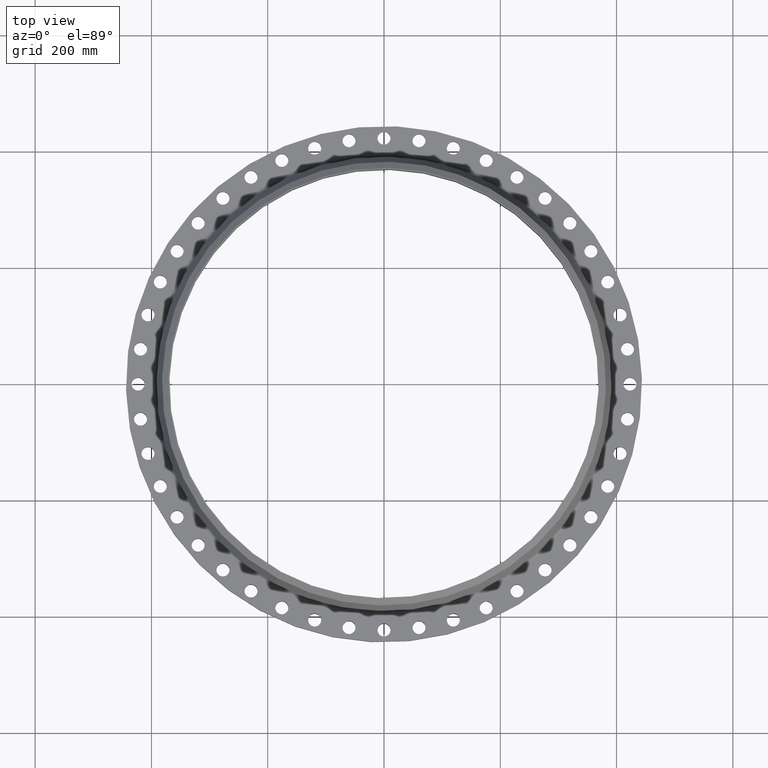
[diagram: clean part render]
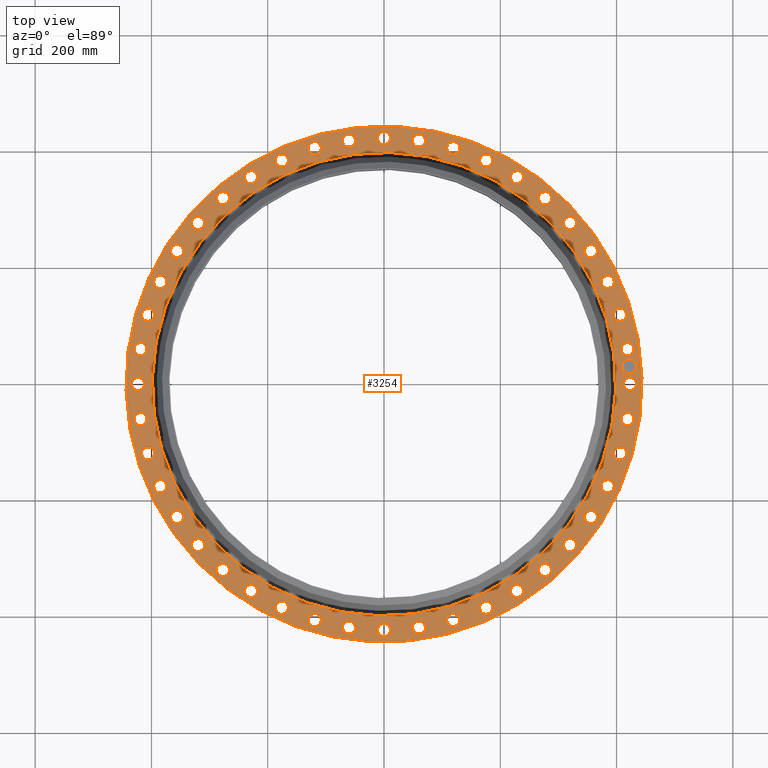
[diagram: same view with one face highlighted and labeled with its STEP entity id]
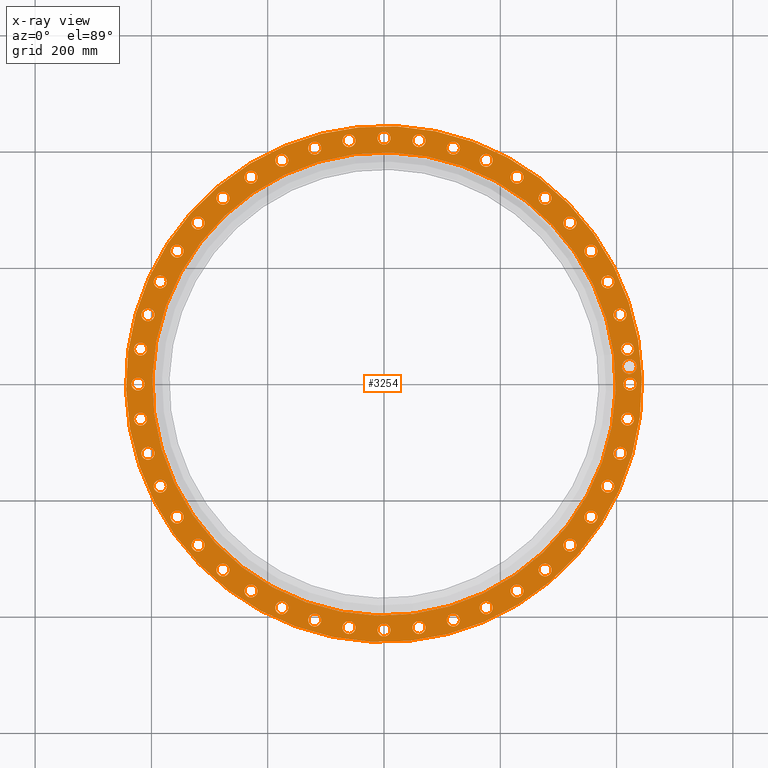
[diagram: x-ray of the same camera — body ghosted, the highlighted face saturated]
A machine part, top view. The second image highlights one B-rep face of the part: STEP entity #3254.
The next image is the same camera in x-ray: the body ghosted, the highlighted face saturated — about 0% of this face is hidden behind the body in this view.
In plain terms, the highlighted planar face has unit normal (0, 0, -1).
Its self-contained STEP definition (entity closure, byte-faithful):
#65=AXIS2_PLACEMENT_3D('Circle Axis2P3D',#63,#64,$) ;
#82=AXIS2_PLACEMENT_3D('Circle Axis2P3D',#80,#81,$) ;
#115=AXIS2_PLACEMENT_3D('Circle Axis2P3D',#113,#114,$) ;
#139=AXIS2_PLACEMENT_3D('Circle Axis2P3D',#137,#138,$) ;
#156=AXIS2_PLACEMENT_3D('Circle Axis2P3D',#154,#155,$) ;
#191=AXIS2_PLACEMENT_3D('Circle Axis2P3D',#189,#190,$) ;
#1219=AXIS2_PLACEMENT_3D('Circle Axis2P3D',#1217,#1218,$) ;
#1231=AXIS2_PLACEMENT_3D('Circle Axis2P3D',#1229,#1230,$) ;
#1262=AXIS2_PLACEMENT_3D('Circle Axis2P3D',#1260,#1261,$) ;
#1274=AXIS2_PLACEMENT_3D('Circle Axis2P3D',#1272,#1273,$) ;
#1305=AXIS2_PLACEMENT_3D('Circle Axis2P3D',#1303,#1304,$) ;
#1317=AXIS2_PLACEMENT_3D('Circle Axis2P3D',#1315,#1316,$) ;
#1348=AXIS2_PLACEMENT_3D('Circle Axis2P3D',#1346,#1347,$) ;
#1360=AXIS2_PLACEMENT_3D('Circle Axis2P3D',#1358,#1359,$) ;
#1391=AXIS2_PLACEMENT_3D('Circle Axis2P3D',#1389,#1390,$) ;
#1403=AXIS2_PLACEMENT_3D('Circle Axis2P3D',#1401,#1402,$) ;
#1434=AXIS2_PLACEMENT_3D('Circle Axis2P3D',#1432,#1433,$) ;
#1446=AXIS2_PLACEMENT_3D('Circle Axis2P3D',#1444,#1445,$) ;
#1477=AXIS2_PLACEMENT_3D('Circle Axis2P3D',#1475,#1476,$) ;
#1489=AXIS2_PLACEMENT_3D('Circle Axis2P3D',#1487,#1488,$) ;
#1520=AXIS2_PLACEMENT_3D('Circle Axis2P3D',#1518,#1519,$) ;
#1532=AXIS2_PLACEMENT_3D('Circle Axis2P3D',#1530,#1531,$) ;
#1563=AXIS2_PLACEMENT_3D('Circle Axis2P3D',#1561,#1562,$) ;
#1575=AXIS2_PLACEMENT_3D('Circle Axis2P3D',#1573,#1574,$) ;
#1606=AXIS2_PLACEMENT_3D('Circle Axis2P3D',#1604,#1605,$) ;
#1618=AXIS2_PLACEMENT_3D('Circle Axis2P3D',#1616,#1617,$) ;
#1649=AXIS2_PLACEMENT_3D('Circle Axis2P3D',#1647,#1648,$) ;
#1661=AXIS2_PLACEMENT_3D('Circle Axis2P3D',#1659,#1660,$) ;
#1692=AXIS2_PLACEMENT_3D('Circle Axis2P3D',#1690,#1691,$) ;
#1704=AXIS2_PLACEMENT_3D('Circle Axis2P3D',#1702,#1703,$) ;
#1735=AXIS2_PLACEMENT_3D('Circle Axis2P3D',#1733,#1734,$) ;
#1747=AXIS2_PLACEMENT_3D('Circle Axis2P3D',#1745,#1746,$) ;
#1778=AXIS2_PLACEMENT_3D('Circle Axis2P3D',#1776,#1777,$) ;
#1790=AXIS2_PLACEMENT_3D('Circle Axis2P3D',#1788,#1789,$) ;
#1821=AXIS2_PLACEMENT_3D('Circle Axis2P3D',#1819,#1820,$) ;
#1833=AXIS2_PLACEMENT_3D('Circle Axis2P3D',#1831,#1832,$) ;
#1864=AXIS2_PLACEMENT_3D('Circle Axis2P3D',#1862,#1863,$) ;
#1876=AXIS2_PLACEMENT_3D('Circle Axis2P3D',#1874,#1875,$) ;
#1907=AXIS2_PLACEMENT_3D('Circle Axis2P3D',#1905,#1906,$) ;
#1919=AXIS2_PLACEMENT_3D('Circle Axis2P3D',#1917,#1918,$) ;
#1950=AXIS2_PLACEMENT_3D('Circle Axis2P3D',#1948,#1949,$) ;
#1962=AXIS2_PLACEMENT_3D('Circle Axis2P3D',#1960,#1961,$) ;
#1993=AXIS2_PLACEMENT_3D('Circle Axis2P3D',#1991,#1992,$) ;
#2005=AXIS2_PLACEMENT_3D('Circle Axis2P3D',#2003,#2004,$) ;
#2036=AXIS2_PLACEMENT_3D('Circle Axis2P3D',#2034,#2035,$) ;
#2048=AXIS2_PLACEMENT_3D('Circle Axis2P3D',#2046,#2047,$) ;
#2079=AXIS2_PLACEMENT_3D('Circle Axis2P3D',#2077,#2078,$) ;
#2091=AXIS2_PLACEMENT_3D('Circle Axis2P3D',#2089,#2090,$) ;
#2122=AXIS2_PLACEMENT_3D('Circle Axis2P3D',#2120,#2121,$) ;
#2134=AXIS2_PLACEMENT_3D('Circle Axis2P3D',#2132,#2133,$) ;
#2165=AXIS2_PLACEMENT_3D('Circle Axis2P3D',#2163,#2164,$) ;
#2177=AXIS2_PLACEMENT_3D('Circle Axis2P3D',#2175,#2176,$) ;
#2208=AXIS2_PLACEMENT_3D('Circle Axis2P3D',#2206,#2207,$) ;
#2220=AXIS2_PLACEMENT_3D('Circle Axis2P3D',#2218,#2219,$) ;
#2251=AXIS2_PLACEMENT_3D('Circle Axis2P3D',#2249,#2250,$) ;
#2263=AXIS2_PLACEMENT_3D('Circle Axis2P3D',#2261,#2262,$) ;
#2294=AXIS2_PLACEMENT_3D('Circle Axis2P3D',#2292,#2293,$) ;
#2306=AXIS2_PLACEMENT_3D('Circle Axis2P3D',#2304,#2305,$) ;
#2337=AXIS2_PLACEMENT_3D('Circle Axis2P3D',#2335,#2336,$) ;
#2349=AXIS2_PLACEMENT_3D('Circle Axis2P3D',#2347,#2348,$) ;
#2380=AXIS2_PLACEMENT_3D('Circle Axis2P3D',#2378,#2379,$) ;
#2392=AXIS2_PLACEMENT_3D('Circle Axis2P3D',#2390,#2391,$) ;
#2423=AXIS2_PLACEMENT_3D('Circle Axis2P3D',#2421,#2422,$) ;
#2435=AXIS2_PLACEMENT_3D('Circle Axis2P3D',#2433,#2434,$) ;
#2466=AXIS2_PLACEMENT_3D('Circle Axis2P3D',#2464,#2465,$) ;
#2478=AXIS2_PLACEMENT_3D('Circle Axis2P3D',#2476,#2477,$) ;
#2509=AXIS2_PLACEMENT_3D('Circle Axis2P3D',#2507,#2508,$) ;
#2521=AXIS2_PLACEMENT_3D('Circle Axis2P3D',#2519,#2520,$) ;
#2552=AXIS2_PLACEMENT_3D('Circle Axis2P3D',#2550,#2551,$) ;
#2564=AXIS2_PLACEMENT_3D('Circle Axis2P3D',#2562,#2563,$) ;
#2595=AXIS2_PLACEMENT_3D('Circle Axis2P3D',#2593,#2594,$) ;
#2607=AXIS2_PLACEMENT_3D('Circle Axis2P3D',#2605,#2606,$) ;
#2638=AXIS2_PLACEMENT_3D('Circle Axis2P3D',#2636,#2637,$) ;
#2650=AXIS2_PLACEMENT_3D('Circle Axis2P3D',#2648,#2649,$) ;
#2681=AXIS2_PLACEMENT_3D('Circle Axis2P3D',#2679,#2680,$) ;
#2693=AXIS2_PLACEMENT_3D('Circle Axis2P3D',#2691,#2692,$) ;
#2724=AXIS2_PLACEMENT_3D('Circle Axis2P3D',#2722,#2723,$) ;
#2736=AXIS2_PLACEMENT_3D('Circle Axis2P3D',#2734,#2735,$) ;
#2767=AXIS2_PLACEMENT_3D('Circle Axis2P3D',#2765,#2766,$) ;
#2779=AXIS2_PLACEMENT_3D('Circle Axis2P3D',#2777,#2778,$) ;
#2810=AXIS2_PLACEMENT_3D('Circle Axis2P3D',#2808,#2809,$) ;
#2822=AXIS2_PLACEMENT_3D('Circle Axis2P3D',#2820,#2821,$) ;
#2853=AXIS2_PLACEMENT_3D('Circle Axis2P3D',#2851,#2852,$) ;
#2865=AXIS2_PLACEMENT_3D('Circle Axis2P3D',#2863,#2864,$) ;
#2896=AXIS2_PLACEMENT_3D('Circle Axis2P3D',#2894,#2895,$) ;
#2908=AXIS2_PLACEMENT_3D('Circle Axis2P3D',#2906,#2907,$) ;
#2939=AXIS2_PLACEMENT_3D('Circle Axis2P3D',#2937,#2938,$) ;
#2951=AXIS2_PLACEMENT_3D('Circle Axis2P3D',#2949,#2950,$) ;
#2982=AXIS2_PLACEMENT_3D('Circle Axis2P3D',#2980,#2981,$) ;
#2994=AXIS2_PLACEMENT_3D('Circle Axis2P3D',#2992,#2993,$) ;
#3025=AXIS2_PLACEMENT_3D('Circle Axis2P3D',#3023,#3024,$) ;
#3037=AXIS2_PLACEMENT_3D('Circle Axis2P3D',#3035,#3036,$) ;
#3050=AXIS2_PLACEMENT_3D('Plane Axis2P3D',#3047,#3048,#3049) ;
#3238=AXIS2_PLACEMENT_3D('Circle Axis2P3D',#3236,#3237,$) ;
#3247=AXIS2_PLACEMENT_3D('Circle Axis2P3D',#3245,#3246,$) ;
#46=CARTESIAN_POINT('Vertex',(16.2688636728,0.210947236987,1.69000000001)) ;
#60=CARTESIAN_POINT('Vertex',(17.0411363273,-0.210947236987,1.69000000001)) ;
#63=CARTESIAN_POINT('Axis2P3D Location',(16.6550000001,0.,1.69000000001)) ;
#80=CARTESIAN_POINT('Axis2P3D Location',(16.6550000001,0.,1.69000000001)) ;
#110=CARTESIAN_POINT('Vertex',(-8.37556415945,-15.3313673563,1.69000000001)) ;
#113=CARTESIAN_POINT('Axis2P3D Location',(0.,0.,1.69000000001)) ;
#117=CARTESIAN_POINT('Vertex',(8.37556415945,15.3313673563,1.69000000001)) ;
#137=CARTESIAN_POINT('Axis2P3D Location',(0.,0.,1.69000000001)) ;
#154=CARTESIAN_POINT('Axis2P3D Location',(0.,0.,1.69000000001)) ;
#158=CARTESIAN_POINT('Vertex',(7.52109158504,13.7672658003,1.69000000001)) ;
#160=CARTESIAN_POINT('Vertex',(-7.52109158504,-13.7672658003,1.69000000001)) ;
#189=CARTESIAN_POINT('Axis2P3D Location',(0.,0.,1.69000000001)) ;
#1207=CARTESIAN_POINT('Vertex',(-16.1332910203,2.10650060421,1.69000000001)) ;
#1214=CARTESIAN_POINT('Vertex',(-16.8376612089,2.63400665869,1.69000000001)) ;
#1217=CARTESIAN_POINT('Axis2P3D Location',(-16.4854761146,2.37025363145,1.69000000001)) ;
#1229=CARTESIAN_POINT('Axis2P3D Location',(-16.4854761146,2.37025363145,1.69000000001)) ;
#1250=CARTESIAN_POINT('Vertex',(15.6692910872,-4.38106616776,1.69000000001)) ;
#1257=CARTESIAN_POINT('Vertex',(16.291419864,-5.00344530067,1.69000000001)) ;
#1260=CARTESIAN_POINT('Axis2P3D Location',(15.9803554756,-4.69225573421,1.69000000001)) ;
#1272=CARTESIAN_POINT('Axis2P3D Location',(15.9803554756,-4.69225573421,1.69000000001)) ;
#1293=CARTESIAN_POINT('Vertex',(-15.6692910872,4.38106616776,1.69000000001)) ;
#1300=CARTESIAN_POINT('Vertex',(-16.291419864,5.00344530067,1.69000000001)) ;
#1303=CARTESIAN_POINT('Axis2P3D Location',(-15.9803554756,4.69225573421,1.69000000001)) ;
#1315=CARTESIAN_POINT('Axis2P3D Location',(-15.9803554756,4.69225573421,1.69000000001)) ;
#1336=CARTESIAN_POINT('Vertex',(14.8863095741,-6.56644585808,1.69000000001)) ;
#1343=CARTESIAN_POINT('Vertex',(15.4135321913,-7.27102822507,1.69000000001)) ;
#1346=CARTESIAN_POINT('Axis2P3D Location',(15.1499208827,-6.91873704157,1.69000000001)) ;
#1358=CARTESIAN_POINT('Axis2P3D Location',(15.1499208827,-6.91873704157,1.69000000001)) ;
#1379=CARTESIAN_POINT('Vertex',(-14.8863095741,6.56644585808,1.69000000001)) ;
#1386=CARTESIAN_POINT('Vertex',(-15.4135321913,7.27102822507,1.69000000001)) ;
#1389=CARTESIAN_POINT('Axis2P3D Location',(-15.1499208827,6.91873704157,1.69000000001)) ;
#1401=CARTESIAN_POINT('Axis2P3D Location',(-15.1499208827,6.91873704157,1.69000000001)) ;
#1422=CARTESIAN_POINT('Vertex',(13.8002857266,-8.6181516468,1.69000000001)) ;
#1429=CARTESIAN_POINT('Vertex',(14.2218694522,-9.39059398272,1.69000000001)) ;
#1432=CARTESIAN_POINT('Axis2P3D Location',(14.0110775894,-9.00437281476,1.69000000001)) ;
#1444=CARTESIAN_POINT('Axis2P3D Location',(14.0110775894,-9.00437281476,1.69000000001)) ;
#1465=CARTESIAN_POINT('Vertex',(-13.8002857266,8.6181516468,1.69000000001)) ;
#1472=CARTESIAN_POINT('Vertex',(-14.2218694522,9.39059398272,1.69000000001)) ;
#1475=CARTESIAN_POINT('Axis2P3D Location',(-14.0110775894,9.00437281476,1.69000000001)) ;
#1487=CARTESIAN_POINT('Axis2P3D Location',(-14.0110775894,9.00437281476,1.69000000001)) ;
#1508=CARTESIAN_POINT('Vertex',(12.4333278584,-10.4944167207,1.69000000001)) ;
#1515=CARTESIAN_POINT('Vertex',(12.7406904634,-11.3189943271,1.69000000001)) ;
#1518=CARTESIAN_POINT('Axis2P3D Location',(12.5870091609,-10.9067055239,1.69000000001)) ;
#1530=CARTESIAN_POINT('Axis2P3D Location',(12.5870091609,-10.9067055239,1.69000000001)) ;
#1551=CARTESIAN_POINT('Vertex',(-12.4333278584,10.4944167207,1.69000000001)) ;
#1558=CARTESIAN_POINT('Vertex',(-12.7406904634,11.3189943271,1.69000000001)) ;
#1561=CARTESIAN_POINT('Axis2P3D Location',(-12.5870091609,10.9067055239,1.69000000001)) ;
#1573=CARTESIAN_POINT('Axis2P3D Location',(-12.5870091609,10.9067055239,1.69000000001)) ;
#1594=CARTESIAN_POINT('Vertex',(10.8132632898,-12.1570457335,1.69000000001)) ;
#1601=CARTESIAN_POINT('Vertex',(11.000147758,-13.0169725883,1.69000000001)) ;
#1604=CARTESIAN_POINT('Axis2P3D Location',(10.9067055239,-12.5870091609,1.69000000001)) ;
#1616=CARTESIAN_POINT('Axis2P3D Location',(10.9067055239,-12.5870091609,1.69000000001)) ;
#1637=CARTESIAN_POINT('Vertex',(-10.8132632898,12.1570457335,1.69000000001)) ;
#1644=CARTESIAN_POINT('Vertex',(-11.000147758,13.0169725883,1.69000000001)) ;
#1647=CARTESIAN_POINT('Axis2P3D Location',(-10.9067055239,12.5870091609,1.69000000001)) ;
#1659=CARTESIAN_POINT('Axis2P3D Location',(-10.9067055239,12.5870091609,1.69000000001)) ;
#1680=CARTESIAN_POINT('Vertex',(8.97307186351,-13.5721923533,1.69000000001)) ;
#1687=CARTESIAN_POINT('Vertex',(9.03567376601,-14.4499628254,1.69000000001)) ;
#1690=CARTESIAN_POINT('Axis2P3D Location',(9.00437281476,-14.0110775894,1.69000000001)) ;
#1702=CARTESIAN_POINT('Axis2P3D Location',(9.00437281476,-14.0110775894,1.69000000001)) ;
#1723=CARTESIAN_POINT('Vertex',(-8.97307186351,13.5721923533,1.69000000001)) ;
#1730=CARTESIAN_POINT('Vertex',(-9.03567376601,14.4499628254,1.69000000001)) ;
#1733=CARTESIAN_POINT('Axis2P3D Location',(-9.00437281476,14.0110775894,1.69000000001)) ;
#1745=CARTESIAN_POINT('Axis2P3D Location',(-9.00437281476,14.0110775894,1.69000000001)) ;
#1766=CARTESIAN_POINT('Vertex',(6.95021457027,-14.7110482757,1.69000000001)) ;
#1773=CARTESIAN_POINT('Vertex',(6.88725951288,-15.5887934897,1.69000000001)) ;
#1776=CARTESIAN_POINT('Axis2P3D Location',(6.91873704157,-15.1499208827,1.69000000001)) ;
#1788=CARTESIAN_POINT('Axis2P3D Location',(6.91873704157,-15.1499208827,1.69000000001)) ;
#1809=CARTESIAN_POINT('Vertex',(-6.95021457027,14.7110482757,1.69000000001)) ;
#1816=CARTESIAN_POINT('Vertex',(-6.88725951288,15.5887934897,1.69000000001)) ;
#1819=CARTESIAN_POINT('Axis2P3D Location',(-6.91873704157,15.1499208827,1.69000000001)) ;
#1831=CARTESIAN_POINT('Axis2P3D Location',(-6.91873704157,15.1499208827,1.69000000001)) ;
#1852=CARTESIAN_POINT('Vertex',(4.78587095114,-15.5504296783,1.69000000001)) ;
#1859=CARTESIAN_POINT('Vertex',(4.59864051728,-16.4102812729,1.69000000001)) ;
#1862=CARTESIAN_POINT('Axis2P3D Location',(4.69225573421,-15.9803554756,1.69000000001)) ;
#1874=CARTESIAN_POINT('Axis2P3D Location',(4.69225573421,-15.9803554756,1.69000000001)) ;
#1895=CARTESIAN_POINT('Vertex',(-4.78587095114,15.5504296783,1.69000000001)) ;
#1902=CARTESIAN_POINT('Vertex',(-4.59864051728,16.4102812729,1.69000000001)) ;
#1905=CARTESIAN_POINT('Axis2P3D Location',(-4.69225573421,15.9803554756,1.69000000001)) ;
#1917=CARTESIAN_POINT('Axis2P3D Location',(-4.69225573421,15.9803554756,1.69000000001)) ;
#1938=CARTESIAN_POINT('Vertex',(2.52410080076,-16.0732491765,1.69000000001)) ;
#1945=CARTESIAN_POINT('Vertex',(2.21640646214,-16.8977030527,1.69000000001)) ;
#1948=CARTESIAN_POINT('Axis2P3D Location',(2.37025363145,-16.4854761146,1.69000000001)) ;
#1960=CARTESIAN_POINT('Axis2P3D Location',(2.37025363145,-16.4854761146,1.69000000001)) ;
#1981=CARTESIAN_POINT('Vertex',(-2.52410080076,16.0732491765,1.69000000001)) ;
#1988=CARTESIAN_POINT('Vertex',(-2.21640646214,16.8977030527,1.69000000001)) ;
#1991=CARTESIAN_POINT('Axis2P3D Location',(-2.37025363145,16.4854761146,1.69000000001)) ;
#2003=CARTESIAN_POINT('Axis2P3D Location',(-2.37025363145,16.4854761146,1.69000000001)) ;
#2024=CARTESIAN_POINT('Vertex',(0.210947236987,-16.2688636728,1.69000000001)) ;
#2031=CARTESIAN_POINT('Vertex',(-0.210947236987,-17.0411363273,1.69000000001)) ;
#2034=CARTESIAN_POINT('Axis2P3D Location',(-1.21810525442E-015,-16.6550000001,1.69000000001)) ;
#2046=CARTESIAN_POINT('Axis2P3D Location',(-1.21810525442E-015,-16.6550000001,1.69000000001)) ;
#2067=CARTESIAN_POINT('Vertex',(-0.210947236987,16.2688636728,1.69000000001)) ;
#2074=CARTESIAN_POINT('Vertex',(0.210947236987,17.0411363273,1.69000000001)) ;
#2077=CARTESIAN_POINT('Axis2P3D Location',(-8.21543989572E-016,16.6550000001,1.69000000001)) ;
#2089=CARTESIAN_POINT('Axis2P3D Location',(-8.21543989572E-016,16.6550000001,1.69000000001)) ;
#2110=CARTESIAN_POINT('Vertex',(-2.10650060421,-16.1332910203,1.69000000001)) ;
#2117=CARTESIAN_POINT('Vertex',(-2.63400665869,-16.8376612089,1.69000000001)) ;
#2120=CARTESIAN_POINT('Axis2P3D Location',(-2.37025363145,-16.4854761146,1.69000000001)) ;
#2132=CARTESIAN_POINT('Axis2P3D Location',(-2.37025363145,-16.4854761146,1.69000000001)) ;
#2153=CARTESIAN_POINT('Vertex',(2.10650060421,16.1332910203,1.69000000001)) ;
#2160=CARTESIAN_POINT('Vertex',(2.63400665869,16.8376612089,1.69000000001)) ;
#2163=CARTESIAN_POINT('Axis2P3D Location',(2.37025363145,16.4854761146,1.69000000001)) ;
#2175=CARTESIAN_POINT('Axis2P3D Location',(2.37025363145,16.4854761146,1.69000000001)) ;
#2196=CARTESIAN_POINT('Vertex',(-4.38106616776,-15.6692910872,1.69000000001)) ;
#2203=CARTESIAN_POINT('Vertex',(-5.00344530067,-16.291419864,1.69000000001)) ;
#2206=CARTESIAN_POINT('Axis2P3D Location',(-4.69225573421,-15.9803554756,1.69000000001)) ;
#2218=CARTESIAN_POINT('Axis2P3D Location',(-4.69225573421,-15.9803554756,1.69000000001)) ;
#2239=CARTESIAN_POINT('Vertex',(4.38106616776,15.6692910872,1.69000000001)) ;
#2246=CARTESIAN_POINT('Vertex',(5.00344530067,16.291419864,1.69000000001)) ;
#2249=CARTESIAN_POINT('Axis2P3D Location',(4.69225573421,15.9803554756,1.69000000001)) ;
#2261=CARTESIAN_POINT('Axis2P3D Location',(4.69225573421,15.9803554756,1.69000000001)) ;
#2282=CARTESIAN_POINT('Vertex',(-6.56644585808,-14.8863095741,1.69000000001)) ;
#2289=CARTESIAN_POINT('Vertex',(-7.27102822507,-15.4135321913,1.69000000001)) ;
#2292=CARTESIAN_POINT('Axis2P3D Location',(-6.91873704157,-15.1499208827,1.69000000001)) ;
#2304=CARTESIAN_POINT('Axis2P3D Location',(-6.91873704157,-15.1499208827,1.69000000001)) ;
#2325=CARTESIAN_POINT('Vertex',(6.56644585808,14.8863095741,1.69000000001)) ;
#2332=CARTESIAN_POINT('Vertex',(7.27102822507,15.4135321913,1.69000000001)) ;
#2335=CARTESIAN_POINT('Axis2P3D Location',(6.91873704157,15.1499208827,1.69000000001)) ;
#2347=CARTESIAN_POINT('Axis2P3D Location',(6.91873704157,15.1499208827,1.69000000001)) ;
#2368=CARTESIAN_POINT('Vertex',(-8.6181516468,-13.8002857266,1.69000000001)) ;
#2375=CARTESIAN_POINT('Vertex',(-9.39059398272,-14.2218694522,1.69000000001)) ;
#2378=CARTESIAN_POINT('Axis2P3D Location',(-9.00437281476,-14.0110775894,1.69000000001)) ;
#2390=CARTESIAN_POINT('Axis2P3D Location',(-9.00437281476,-14.0110775894,1.69000000001)) ;
#2411=CARTESIAN_POINT('Vertex',(8.6181516468,13.8002857266,1.69000000001)) ;
#2418=CARTESIAN_POINT('Vertex',(9.39059398272,14.2218694522,1.69000000001)) ;
#2421=CARTESIAN_POINT('Axis2P3D Location',(9.00437281476,14.0110775894,1.69000000001)) ;
#2433=CARTESIAN_POINT('Axis2P3D Location',(9.00437281476,14.0110775894,1.69000000001)) ;
#2454=CARTESIAN_POINT('Vertex',(-10.4944167207,-12.4333278584,1.69000000001)) ;
#2461=CARTESIAN_POINT('Vertex',(-11.3189943271,-12.7406904634,1.69000000001)) ;
#2464=CARTESIAN_POINT('Axis2P3D Location',(-10.9067055239,-12.5870091609,1.69000000001)) ;
#2476=CARTESIAN_POINT('Axis2P3D Location',(-10.9067055239,-12.5870091609,1.69000000001)) ;
#2497=CARTESIAN_POINT('Vertex',(10.4944167207,12.4333278584,1.69000000001)) ;
#2504=CARTESIAN_POINT('Vertex',(11.3189943271,12.7406904634,1.69000000001)) ;
#2507=CARTESIAN_POINT('Axis2P3D Location',(10.9067055239,12.5870091609,1.69000000001)) ;
#2519=CARTESIAN_POINT('Axis2P3D Location',(10.9067055239,12.5870091609,1.69000000001)) ;
#2540=CARTESIAN_POINT('Vertex',(-12.1570457335,-10.8132632898,1.69000000001)) ;
#2547=CARTESIAN_POINT('Vertex',(-13.0169725883,-11.000147758,1.69000000001)) ;
#2550=CARTESIAN_POINT('Axis2P3D Location',(-12.5870091609,-10.9067055239,1.69000000001)) ;
#2562=CARTESIAN_POINT('Axis2P3D Location',(-12.5870091609,-10.9067055239,1.69000000001)) ;
#2583=CARTESIAN_POINT('Vertex',(12.1570457335,10.8132632898,1.69000000001)) ;
#2590=CARTESIAN_POINT('Vertex',(13.0169725883,11.000147758,1.69000000001)) ;
#2593=CARTESIAN_POINT('Axis2P3D Location',(12.5870091609,10.9067055239,1.69000000001)) ;
#2605=CARTESIAN_POINT('Axis2P3D Location',(12.5870091609,10.9067055239,1.69000000001)) ;
#2626=CARTESIAN_POINT('Vertex',(-13.5721923533,-8.97307186351,1.69000000001)) ;
#2633=CARTESIAN_POINT('Vertex',(-14.4499628254,-9.03567376601,1.69000000001)) ;
#2636=CARTESIAN_POINT('Axis2P3D Location',(-14.0110775894,-9.00437281476,1.69000000001)) ;
#2648=CARTESIAN_POINT('Axis2P3D Location',(-14.0110775894,-9.00437281476,1.69000000001)) ;
#2669=CARTESIAN_POINT('Vertex',(13.5721923533,8.97307186351,1.69000000001)) ;
#2676=CARTESIAN_POINT('Vertex',(14.4499628254,9.03567376601,1.69000000001)) ;
#2679=CARTESIAN_POINT('Axis2P3D Location',(14.0110775894,9.00437281476,1.69000000001)) ;
#2691=CARTESIAN_POINT('Axis2P3D Location',(14.0110775894,9.00437281476,1.69000000001)) ;
#2712=CARTESIAN_POINT('Vertex',(-14.7110482757,-6.95021457027,1.69000000001)) ;
#2719=CARTESIAN_POINT('Vertex',(-15.5887934897,-6.88725951288,1.69000000001)) ;
#2722=CARTESIAN_POINT('Axis2P3D Location',(-15.1499208827,-6.91873704157,1.69000000001)) ;
#2734=CARTESIAN_POINT('Axis2P3D Location',(-15.1499208827,-6.91873704157,1.69000000001)) ;
#2755=CARTESIAN_POINT('Vertex',(14.7110482757,6.95021457027,1.69000000001)) ;
#2762=CARTESIAN_POINT('Vertex',(15.5887934897,6.88725951288,1.69000000001)) ;
#2765=CARTESIAN_POINT('Axis2P3D Location',(15.1499208827,6.91873704157,1.69000000001)) ;
#2777=CARTESIAN_POINT('Axis2P3D Location',(15.1499208827,6.91873704157,1.69000000001)) ;
#2798=CARTESIAN_POINT('Vertex',(-15.5504296783,-4.78587095114,1.69000000001)) ;
#2805=CARTESIAN_POINT('Vertex',(-16.4102812729,-4.59864051728,1.69000000001)) ;
#2808=CARTESIAN_POINT('Axis2P3D Location',(-15.9803554756,-4.69225573421,1.69000000001)) ;
#2820=CARTESIAN_POINT('Axis2P3D Location',(-15.9803554756,-4.69225573421,1.69000000001)) ;
#2841=CARTESIAN_POINT('Vertex',(15.5504296783,4.78587095114,1.69000000001)) ;
#2848=CARTESIAN_POINT('Vertex',(16.4102812729,4.59864051728,1.69000000001)) ;
#2851=CARTESIAN_POINT('Axis2P3D Location',(15.9803554756,4.69225573421,1.69000000001)) ;
#2863=CARTESIAN_POINT('Axis2P3D Location',(15.9803554756,4.69225573421,1.69000000001)) ;
#2884=CARTESIAN_POINT('Vertex',(-16.0732491765,-2.52410080076,1.69000000001)) ;
#2891=CARTESIAN_POINT('Vertex',(-16.8977030527,-2.21640646214,1.69000000001)) ;
#2894=CARTESIAN_POINT('Axis2P3D Location',(-16.4854761146,-2.37025363145,1.69000000001)) ;
#2906=CARTESIAN_POINT('Axis2P3D Location',(-16.4854761146,-2.37025363145,1.69000000001)) ;
#2927=CARTESIAN_POINT('Vertex',(16.0732491765,2.52410080076,1.69000000001)) ;
#2934=CARTESIAN_POINT('Vertex',(16.8977030527,2.21640646214,1.69000000001)) ;
#2937=CARTESIAN_POINT('Axis2P3D Location',(16.4854761146,2.37025363145,1.69000000001)) ;
#2949=CARTESIAN_POINT('Axis2P3D Location',(16.4854761146,2.37025363145,1.69000000001)) ;
#2970=CARTESIAN_POINT('Vertex',(-16.2688636728,-0.210947236987,1.69000000001)) ;
#2977=CARTESIAN_POINT('Vertex',(-17.0411363273,0.210947236987,1.69000000001)) ;
#2980=CARTESIAN_POINT('Axis2P3D Location',(-16.6550000001,-2.03964924399E-015,1.69000000001)) ;
#2992=CARTESIAN_POINT('Axis2P3D Location',(-16.6550000001,-2.03964924399E-015,1.69000000001)) ;
#3013=CARTESIAN_POINT('Vertex',(16.1332910203,-2.10650060421,1.69000000001)) ;
#3020=CARTESIAN_POINT('Vertex',(16.8376612089,-2.63400665869,1.69000000001)) ;
#3023=CARTESIAN_POINT('Axis2P3D Location',(16.4854761146,-2.37025363145,1.69000000001)) ;
#3035=CARTESIAN_POINT('Axis2P3D Location',(16.4854761146,-2.37025363145,1.69000000001)) ;
#3047=CARTESIAN_POINT('Axis2P3D Location',(0.,17.4700000001,1.69000000001)) ;
#3236=CARTESIAN_POINT('Axis2P3D Location',(16.6125649689,1.18815409619,1.69000000001)) ;
#3240=CARTESIAN_POINT('Vertex',(16.5768954591,1.68687901041,1.69000000001)) ;
#3242=CARTESIAN_POINT('Vertex',(16.6482344787,0.689429181964,1.69000000001)) ;
#3245=CARTESIAN_POINT('Axis2P3D Location',(16.6125649689,1.18815409619,1.69000000001)) ;
#64=DIRECTION('Axis2P3D Direction',(0.,-0.,-0.0393700787402)) ;
#81=DIRECTION('Axis2P3D Direction',(0.,-0.,-0.0393700787402)) ;
#114=DIRECTION('Axis2P3D Direction',(0.,0.,-0.0393700787402)) ;
#138=DIRECTION('Axis2P3D Direction',(0.,0.,-0.0393700787402)) ;
#155=DIRECTION('Axis2P3D Direction',(0.,0.,-0.0393700787402)) ;
#190=DIRECTION('Axis2P3D Direction',(0.,0.,-0.0393700787402)) ;
#1218=DIRECTION('Axis2P3D Direction',(0.,0.,-0.0393700787402)) ;
#1230=DIRECTION('Axis2P3D Direction',(0.,0.,-0.0393700787402)) ;
#1261=DIRECTION('Axis2P3D Direction',(0.,-0.,-0.0393700787402)) ;
#1273=DIRECTION('Axis2P3D Direction',(0.,-0.,-0.0393700787402)) ;
#1304=DIRECTION('Axis2P3D Direction',(0.,0.,-0.0393700787402)) ;
#1316=DIRECTION('Axis2P3D Direction',(0.,0.,-0.0393700787402)) ;
#1347=DIRECTION('Axis2P3D Direction',(0.,-0.,-0.0393700787402)) ;
#1359=DIRECTION('Axis2P3D Direction',(0.,-0.,-0.0393700787402)) ;
#1390=DIRECTION('Axis2P3D Direction',(0.,0.,-0.0393700787402)) ;
#1402=DIRECTION('Axis2P3D Direction',(0.,0.,-0.0393700787402)) ;
#1433=DIRECTION('Axis2P3D Direction',(0.,-0.,-0.0393700787402)) ;
#1445=DIRECTION('Axis2P3D Direction',(0.,-0.,-0.0393700787402)) ;
#1476=DIRECTION('Axis2P3D Direction',(0.,0.,-0.0393700787402)) ;
#1488=DIRECTION('Axis2P3D Direction',(0.,0.,-0.0393700787402)) ;
#1519=DIRECTION('Axis2P3D Direction',(0.,-0.,-0.0393700787402)) ;
#1531=DIRECTION('Axis2P3D Direction',(0.,-0.,-0.0393700787402)) ;
#1562=DIRECTION('Axis2P3D Direction',(0.,0.,-0.0393700787402)) ;
#1574=DIRECTION('Axis2P3D Direction',(0.,0.,-0.0393700787402)) ;
#1605=DIRECTION('Axis2P3D Direction',(0.,-0.,-0.0393700787402)) ;
#1617=DIRECTION('Axis2P3D Direction',(0.,-0.,-0.0393700787402)) ;
#1648=DIRECTION('Axis2P3D Direction',(0.,0.,-0.0393700787402)) ;
#1660=DIRECTION('Axis2P3D Direction',(0.,0.,-0.0393700787402)) ;
#1691=DIRECTION('Axis2P3D Direction',(0.,-0.,-0.0393700787402)) ;
#1703=DIRECTION('Axis2P3D Direction',(0.,-0.,-0.0393700787402)) ;
#1734=DIRECTION('Axis2P3D Direction',(0.,0.,-0.0393700787402)) ;
#1746=DIRECTION('Axis2P3D Direction',(0.,0.,-0.0393700787402)) ;
#1777=DIRECTION('Axis2P3D Direction',(0.,-0.,-0.0393700787402)) ;
#1789=DIRECTION('Axis2P3D Direction',(0.,-0.,-0.0393700787402)) ;
#1820=DIRECTION('Axis2P3D Direction',(0.,0.,-0.0393700787402)) ;
#1832=DIRECTION('Axis2P3D Direction',(0.,0.,-0.0393700787402)) ;
#1863=DIRECTION('Axis2P3D Direction',(0.,-0.,-0.0393700787402)) ;
#1875=DIRECTION('Axis2P3D Direction',(0.,-0.,-0.0393700787402)) ;
#1906=DIRECTION('Axis2P3D Direction',(0.,0.,-0.0393700787402)) ;
#1918=DIRECTION('Axis2P3D Direction',(0.,0.,-0.0393700787402)) ;
#1949=DIRECTION('Axis2P3D Direction',(0.,-0.,-0.0393700787402)) ;
#1961=DIRECTION('Axis2P3D Direction',(0.,-0.,-0.0393700787402)) ;
#1992=DIRECTION('Axis2P3D Direction',(0.,0.,-0.0393700787402)) ;
#2004=DIRECTION('Axis2P3D Direction',(0.,0.,-0.0393700787402)) ;
#2035=DIRECTION('Axis2P3D Direction',(0.,-0.,-0.0393700787402)) ;
#2047=DIRECTION('Axis2P3D Direction',(0.,-0.,-0.0393700787402)) ;
#2078=DIRECTION('Axis2P3D Direction',(0.,0.,-0.0393700787402)) ;
#2090=DIRECTION('Axis2P3D Direction',(0.,0.,-0.0393700787402)) ;
#2121=DIRECTION('Axis2P3D Direction',(-0.,0.,-0.0393700787402)) ;
#2133=DIRECTION('Axis2P3D Direction',(-0.,0.,-0.0393700787402)) ;
#2164=DIRECTION('Axis2P3D Direction',(0.,0.,-0.0393700787402)) ;
#2176=DIRECTION('Axis2P3D Direction',(0.,0.,-0.0393700787402)) ;
#2207=DIRECTION('Axis2P3D Direction',(-0.,0.,-0.0393700787402)) ;
#2219=DIRECTION('Axis2P3D Direction',(-0.,0.,-0.0393700787402)) ;
#2250=DIRECTION('Axis2P3D Direction',(0.,0.,-0.0393700787402)) ;
#2262=DIRECTION('Axis2P3D Direction',(0.,0.,-0.0393700787402)) ;
#2293=DIRECTION('Axis2P3D Direction',(-0.,0.,-0.0393700787402)) ;
#2305=DIRECTION('Axis2P3D Direction',(-0.,0.,-0.0393700787402)) ;
#2336=DIRECTION('Axis2P3D Direction',(0.,0.,-0.0393700787402)) ;
#2348=DIRECTION('Axis2P3D Direction',(0.,0.,-0.0393700787402)) ;
#2379=DIRECTION('Axis2P3D Direction',(-0.,0.,-0.0393700787402)) ;
#2391=DIRECTION('Axis2P3D Direction',(-0.,0.,-0.0393700787402)) ;
#2422=DIRECTION('Axis2P3D Direction',(0.,0.,-0.0393700787402)) ;
#2434=DIRECTION('Axis2P3D Direction',(0.,0.,-0.0393700787402)) ;
#2465=DIRECTION('Axis2P3D Direction',(-0.,0.,-0.0393700787402)) ;
#2477=DIRECTION('Axis2P3D Direction',(-0.,0.,-0.0393700787402)) ;
#2508=DIRECTION('Axis2P3D Direction',(0.,0.,-0.0393700787402)) ;
#2520=DIRECTION('Axis2P3D Direction',(0.,0.,-0.0393700787402)) ;
#2551=DIRECTION('Axis2P3D Direction',(-0.,0.,-0.0393700787402)) ;
#2563=DIRECTION('Axis2P3D Direction',(-0.,0.,-0.0393700787402)) ;
#2594=DIRECTION('Axis2P3D Direction',(0.,0.,-0.0393700787402)) ;
#2606=DIRECTION('Axis2P3D Direction',(0.,0.,-0.0393700787402)) ;
#2637=DIRECTION('Axis2P3D Direction',(-0.,0.,-0.0393700787402)) ;
#2649=DIRECTION('Axis2P3D Direction',(-0.,0.,-0.0393700787402)) ;
#2680=DIRECTION('Axis2P3D Direction',(0.,0.,-0.0393700787402)) ;
#2692=DIRECTION('Axis2P3D Direction',(0.,0.,-0.0393700787402)) ;
#2723=DIRECTION('Axis2P3D Direction',(-0.,0.,-0.0393700787402)) ;
#2735=DIRECTION('Axis2P3D Direction',(-0.,0.,-0.0393700787402)) ;
#2766=DIRECTION('Axis2P3D Direction',(0.,0.,-0.0393700787402)) ;
#2778=DIRECTION('Axis2P3D Direction',(0.,0.,-0.0393700787402)) ;
#2809=DIRECTION('Axis2P3D Direction',(-0.,0.,-0.0393700787402)) ;
#2821=DIRECTION('Axis2P3D Direction',(-0.,0.,-0.0393700787402)) ;
#2852=DIRECTION('Axis2P3D Direction',(0.,0.,-0.0393700787402)) ;
#2864=DIRECTION('Axis2P3D Direction',(0.,0.,-0.0393700787402)) ;
#2895=DIRECTION('Axis2P3D Direction',(-0.,0.,-0.0393700787402)) ;
#2907=DIRECTION('Axis2P3D Direction',(-0.,0.,-0.0393700787402)) ;
#2938=DIRECTION('Axis2P3D Direction',(0.,0.,-0.0393700787402)) ;
#2950=DIRECTION('Axis2P3D Direction',(0.,0.,-0.0393700787402)) ;
#2981=DIRECTION('Axis2P3D Direction',(-0.,0.,-0.0393700787402)) ;
#2993=DIRECTION('Axis2P3D Direction',(-0.,0.,-0.0393700787402)) ;
#3024=DIRECTION('Axis2P3D Direction',(0.,-0.,-0.0393700787402)) ;
#3036=DIRECTION('Axis2P3D Direction',(0.,-0.,-0.0393700787402)) ;
#3048=DIRECTION('Axis2P3D Direction',(0.,0.,-0.0393700787402)) ;
#3049=DIRECTION('Axis2P3D XDirection',(0.0393700787402,0.,0.)) ;
#3237=DIRECTION('Axis2P3D Direction',(0.,0.,-0.0393700787402)) ;
#3246=DIRECTION('Axis2P3D Direction',(0.,0.,-0.0393700787402)) ;
#3053=ORIENTED_EDGE('',*,*,#141,.F.) ;
#3054=ORIENTED_EDGE('',*,*,#119,.F.) ;
#3057=ORIENTED_EDGE('',*,*,#67,.T.) ;
#3058=ORIENTED_EDGE('',*,*,#84,.T.) ;
#3061=ORIENTED_EDGE('',*,*,#193,.T.) ;
#3062=ORIENTED_EDGE('',*,*,#162,.T.) ;
#3065=ORIENTED_EDGE('',*,*,#3039,.T.) ;
#3066=ORIENTED_EDGE('',*,*,#3027,.T.) ;
#3069=ORIENTED_EDGE('',*,*,#1276,.T.) ;
#3070=ORIENTED_EDGE('',*,*,#1264,.T.) ;
#3073=ORIENTED_EDGE('',*,*,#1362,.T.) ;
#3074=ORIENTED_EDGE('',*,*,#1350,.T.) ;
#3077=ORIENTED_EDGE('',*,*,#1448,.T.) ;
#3078=ORIENTED_EDGE('',*,*,#1436,.T.) ;
#3081=ORIENTED_EDGE('',*,*,#1534,.T.) ;
#3082=ORIENTED_EDGE('',*,*,#1522,.T.) ;
#3085=ORIENTED_EDGE('',*,*,#1620,.T.) ;
#3086=ORIENTED_EDGE('',*,*,#1608,.T.) ;
#3089=ORIENTED_EDGE('',*,*,#1706,.T.) ;
#3090=ORIENTED_EDGE('',*,*,#1694,.T.) ;
#3093=ORIENTED_EDGE('',*,*,#1792,.T.) ;
#3094=ORIENTED_EDGE('',*,*,#1780,.T.) ;
#3097=ORIENTED_EDGE('',*,*,#1878,.T.) ;
#3098=ORIENTED_EDGE('',*,*,#1866,.T.) ;
#3101=ORIENTED_EDGE('',*,*,#1964,.T.) ;
#3102=ORIENTED_EDGE('',*,*,#1952,.T.) ;
#3105=ORIENTED_EDGE('',*,*,#2050,.T.) ;
#3106=ORIENTED_EDGE('',*,*,#2038,.T.) ;
#3109=ORIENTED_EDGE('',*,*,#2136,.T.) ;
#3110=ORIENTED_EDGE('',*,*,#2124,.T.) ;
#3113=ORIENTED_EDGE('',*,*,#2222,.T.) ;
#3114=ORIENTED_EDGE('',*,*,#2210,.T.) ;
#3117=ORIENTED_EDGE('',*,*,#2308,.T.) ;
#3118=ORIENTED_EDGE('',*,*,#2296,.T.) ;
#3121=ORIENTED_EDGE('',*,*,#2394,.T.) ;
#3122=ORIENTED_EDGE('',*,*,#2382,.T.) ;
#3125=ORIENTED_EDGE('',*,*,#2480,.T.) ;
#3126=ORIENTED_EDGE('',*,*,#2468,.T.) ;
#3129=ORIENTED_EDGE('',*,*,#2566,.T.) ;
#3130=ORIENTED_EDGE('',*,*,#2554,.T.) ;
#3133=ORIENTED_EDGE('',*,*,#2652,.T.) ;
#3134=ORIENTED_EDGE('',*,*,#2640,.T.) ;
#3137=ORIENTED_EDGE('',*,*,#2738,.T.) ;
#3138=ORIENTED_EDGE('',*,*,#2726,.T.) ;
#3141=ORIENTED_EDGE('',*,*,#2824,.T.) ;
#3142=ORIENTED_EDGE('',*,*,#2812,.T.) ;
#3145=ORIENTED_EDGE('',*,*,#2910,.T.) ;
#3146=ORIENTED_EDGE('',*,*,#2898,.T.) ;
#3149=ORIENTED_EDGE('',*,*,#2996,.T.) ;
#3150=ORIENTED_EDGE('',*,*,#2984,.T.) ;
#3153=ORIENTED_EDGE('',*,*,#1233,.T.) ;
#3154=ORIENTED_EDGE('',*,*,#1221,.T.) ;
#3157=ORIENTED_EDGE('',*,*,#1319,.T.) ;
#3158=ORIENTED_EDGE('',*,*,#1307,.T.) ;
#3161=ORIENTED_EDGE('',*,*,#1405,.T.) ;
#3162=ORIENTED_EDGE('',*,*,#1393,.T.) ;
#3165=ORIENTED_EDGE('',*,*,#1491,.T.) ;
#3166=ORIENTED_EDGE('',*,*,#1479,.T.) ;
#3169=ORIENTED_EDGE('',*,*,#1577,.T.) ;
#3170=ORIENTED_EDGE('',*,*,#1565,.T.) ;
#3173=ORIENTED_EDGE('',*,*,#1663,.T.) ;
#3174=ORIENTED_EDGE('',*,*,#1651,.T.) ;
#3177=ORIENTED_EDGE('',*,*,#1749,.T.) ;
#3178=ORIENTED_EDGE('',*,*,#1737,.T.) ;
#3181=ORIENTED_EDGE('',*,*,#1835,.T.) ;
#3182=ORIENTED_EDGE('',*,*,#1823,.T.) ;
#3185=ORIENTED_EDGE('',*,*,#1921,.T.) ;
#3186=ORIENTED_EDGE('',*,*,#1909,.T.) ;
#3189=ORIENTED_EDGE('',*,*,#2007,.T.) ;
#3190=ORIENTED_EDGE('',*,*,#1995,.T.) ;
#3193=ORIENTED_EDGE('',*,*,#2093,.T.) ;
#3194=ORIENTED_EDGE('',*,*,#2081,.T.) ;
#3197=ORIENTED_EDGE('',*,*,#2179,.T.) ;
#3198=ORIENTED_EDGE('',*,*,#2167,.T.) ;
#3201=ORIENTED_EDGE('',*,*,#2265,.T.) ;
#3202=ORIENTED_EDGE('',*,*,#2253,.T.) ;
#3205=ORIENTED_EDGE('',*,*,#2351,.T.) ;
#3206=ORIENTED_EDGE('',*,*,#2339,.T.) ;
#3209=ORIENTED_EDGE('',*,*,#2437,.T.) ;
#3210=ORIENTED_EDGE('',*,*,#2425,.T.) ;
#3213=ORIENTED_EDGE('',*,*,#2523,.T.) ;
#3214=ORIENTED_EDGE('',*,*,#2511,.T.) ;
#3217=ORIENTED_EDGE('',*,*,#2609,.T.) ;
#3218=ORIENTED_EDGE('',*,*,#2597,.T.) ;
#3221=ORIENTED_EDGE('',*,*,#2695,.T.) ;
#3222=ORIENTED_EDGE('',*,*,#2683,.T.) ;
#3225=ORIENTED_EDGE('',*,*,#2781,.T.) ;
#3226=ORIENTED_EDGE('',*,*,#2769,.T.) ;
#3229=ORIENTED_EDGE('',*,*,#2867,.T.) ;
#3230=ORIENTED_EDGE('',*,*,#2855,.T.) ;
#3233=ORIENTED_EDGE('',*,*,#2953,.T.) ;
#3234=ORIENTED_EDGE('',*,*,#2941,.T.) ;
#3251=ORIENTED_EDGE('',*,*,#3244,.T.) ;
#3252=ORIENTED_EDGE('',*,*,#3249,.T.) ;
#3059=FACE_BOUND('',#3056,.T.) ;
#3063=FACE_BOUND('',#3060,.T.) ;
#3067=FACE_BOUND('',#3064,.T.) ;
#3071=FACE_BOUND('',#3068,.T.) ;
#3075=FACE_BOUND('',#3072,.T.) ;
#3079=FACE_BOUND('',#3076,.T.) ;
#3083=FACE_BOUND('',#3080,.T.) ;
#3087=FACE_BOUND('',#3084,.T.) ;
#3091=FACE_BOUND('',#3088,.T.) ;
#3095=FACE_BOUND('',#3092,.T.) ;
#3099=FACE_BOUND('',#3096,.T.) ;
#3103=FACE_BOUND('',#3100,.T.) ;
#3107=FACE_BOUND('',#3104,.T.) ;
#3111=FACE_BOUND('',#3108,.T.) ;
#3115=FACE_BOUND('',#3112,.T.) ;
#3119=FACE_BOUND('',#3116,.T.) ;
#3123=FACE_BOUND('',#3120,.T.) ;
#3127=FACE_BOUND('',#3124,.T.) ;
#3131=FACE_BOUND('',#3128,.T.) ;
#3135=FACE_BOUND('',#3132,.T.) ;
#3139=FACE_BOUND('',#3136,.T.) ;
#3143=FACE_BOUND('',#3140,.T.) ;
#3147=FACE_BOUND('',#3144,.T.) ;
#3151=FACE_BOUND('',#3148,.T.) ;
#3155=FACE_BOUND('',#3152,.T.) ;
#3159=FACE_BOUND('',#3156,.T.) ;
#3163=FACE_BOUND('',#3160,.T.) ;
#3167=FACE_BOUND('',#3164,.T.) ;
#3171=FACE_BOUND('',#3168,.T.) ;
#3175=FACE_BOUND('',#3172,.T.) ;
#3179=FACE_BOUND('',#3176,.T.) ;
#3183=FACE_BOUND('',#3180,.T.) ;
#3187=FACE_BOUND('',#3184,.T.) ;
#3191=FACE_BOUND('',#3188,.T.) ;
#3195=FACE_BOUND('',#3192,.T.) ;
#3199=FACE_BOUND('',#3196,.T.) ;
#3203=FACE_BOUND('',#3200,.T.) ;
#3207=FACE_BOUND('',#3204,.T.) ;
#3211=FACE_BOUND('',#3208,.T.) ;
#3215=FACE_BOUND('',#3212,.T.) ;
#3219=FACE_BOUND('',#3216,.T.) ;
#3223=FACE_BOUND('',#3220,.T.) ;
#3227=FACE_BOUND('',#3224,.T.) ;
#3231=FACE_BOUND('',#3228,.T.) ;
#3235=FACE_BOUND('',#3232,.T.) ;
#3253=FACE_BOUND('',#3250,.T.) ;
#3254=ADVANCED_FACE('PartBody',(#3055,#3059,#3063,#3067,#3071,#3075,#3079,#3083,#3087,#3091,#3095,#3099,#3103,#3107,#3111,#3115,#3119,#3123,#3127,#3131,#3135,#3139,#3143,#3147,#3151,#3155,#3159,#3163,#3167,#3171,#3175,#3179,#3183,#3187,#3191,#3195,#3199,#3203,#3207,#3211,#3215,#3219,#3223,#3227,#3231,#3235,#3253),#3051,.F.) ;
#66=CIRCLE('generated circle',#65,0.440000000002) ;
#83=CIRCLE('generated circle',#82,0.440000000002) ;
#116=CIRCLE('generated circle',#115,17.4700000001) ;
#140=CIRCLE('generated circle',#139,17.4700000001) ;
#157=CIRCLE('generated circle',#156,15.6877157753) ;
#192=CIRCLE('generated circle',#191,15.6877157753) ;
#1220=CIRCLE('generated circle',#1219,0.440000000002) ;
#1232=CIRCLE('generated circle',#1231,0.440000000002) ;
#1263=CIRCLE('generated circle',#1262,0.440000000002) ;
#1275=CIRCLE('generated circle',#1274,0.440000000002) ;
#1306=CIRCLE('generated circle',#1305,0.440000000002) ;
#1318=CIRCLE('generated circle',#1317,0.440000000002) ;
#1349=CIRCLE('generated circle',#1348,0.440000000002) ;
#1361=CIRCLE('generated circle',#1360,0.440000000002) ;
#1392=CIRCLE('generated circle',#1391,0.440000000002) ;
#1404=CIRCLE('generated circle',#1403,0.440000000002) ;
#1435=CIRCLE('generated circle',#1434,0.440000000002) ;
#1447=CIRCLE('generated circle',#1446,0.440000000002) ;
#1478=CIRCLE('generated circle',#1477,0.440000000002) ;
#1490=CIRCLE('generated circle',#1489,0.440000000002) ;
#1521=CIRCLE('generated circle',#1520,0.440000000002) ;
#1533=CIRCLE('generated circle',#1532,0.440000000002) ;
#1564=CIRCLE('generated circle',#1563,0.440000000002) ;
#1576=CIRCLE('generated circle',#1575,0.440000000002) ;
#1607=CIRCLE('generated circle',#1606,0.440000000002) ;
#1619=CIRCLE('generated circle',#1618,0.440000000002) ;
#1650=CIRCLE('generated circle',#1649,0.440000000002) ;
#1662=CIRCLE('generated circle',#1661,0.440000000002) ;
#1693=CIRCLE('generated circle',#1692,0.440000000002) ;
#1705=CIRCLE('generated circle',#1704,0.440000000002) ;
#1736=CIRCLE('generated circle',#1735,0.440000000002) ;
#1748=CIRCLE('generated circle',#1747,0.440000000002) ;
#1779=CIRCLE('generated circle',#1778,0.440000000002) ;
#1791=CIRCLE('generated circle',#1790,0.440000000002) ;
#1822=CIRCLE('generated circle',#1821,0.440000000002) ;
#1834=CIRCLE('generated circle',#1833,0.440000000002) ;
#1865=CIRCLE('generated circle',#1864,0.440000000002) ;
#1877=CIRCLE('generated circle',#1876,0.440000000002) ;
#1908=CIRCLE('generated circle',#1907,0.440000000002) ;
#1920=CIRCLE('generated circle',#1919,0.440000000002) ;
#1951=CIRCLE('generated circle',#1950,0.440000000002) ;
#1963=CIRCLE('generated circle',#1962,0.440000000002) ;
#1994=CIRCLE('generated circle',#1993,0.440000000002) ;
#2006=CIRCLE('generated circle',#2005,0.440000000002) ;
#2037=CIRCLE('generated circle',#2036,0.440000000002) ;
#2049=CIRCLE('generated circle',#2048,0.440000000002) ;
#2080=CIRCLE('generated circle',#2079,0.440000000002) ;
#2092=CIRCLE('generated circle',#2091,0.440000000002) ;
#2123=CIRCLE('generated circle',#2122,0.440000000002) ;
#2135=CIRCLE('generated circle',#2134,0.440000000002) ;
#2166=CIRCLE('generated circle',#2165,0.440000000002) ;
#2178=CIRCLE('generated circle',#2177,0.440000000002) ;
#2209=CIRCLE('generated circle',#2208,0.440000000002) ;
#2221=CIRCLE('generated circle',#2220,0.440000000002) ;
#2252=CIRCLE('generated circle',#2251,0.440000000002) ;
#2264=CIRCLE('generated circle',#2263,0.440000000002) ;
#2295=CIRCLE('generated circle',#2294,0.440000000002) ;
#2307=CIRCLE('generated circle',#2306,0.440000000002) ;
#2338=CIRCLE('generated circle',#2337,0.440000000002) ;
#2350=CIRCLE('generated circle',#2349,0.440000000002) ;
#2381=CIRCLE('generated circle',#2380,0.440000000002) ;
#2393=CIRCLE('generated circle',#2392,0.440000000002) ;
#2424=CIRCLE('generated circle',#2423,0.440000000002) ;
#2436=CIRCLE('generated circle',#2435,0.440000000002) ;
#2467=CIRCLE('generated circle',#2466,0.440000000002) ;
#2479=CIRCLE('generated circle',#2478,0.440000000002) ;
#2510=CIRCLE('generated circle',#2509,0.440000000002) ;
#2522=CIRCLE('generated circle',#2521,0.440000000002) ;
#2553=CIRCLE('generated circle',#2552,0.440000000002) ;
#2565=CIRCLE('generated circle',#2564,0.440000000002) ;
#2596=CIRCLE('generated circle',#2595,0.440000000002) ;
#2608=CIRCLE('generated circle',#2607,0.440000000002) ;
#2639=CIRCLE('generated circle',#2638,0.440000000002) ;
#2651=CIRCLE('generated circle',#2650,0.440000000002) ;
#2682=CIRCLE('generated circle',#2681,0.440000000002) ;
#2694=CIRCLE('generated circle',#2693,0.440000000002) ;
#2725=CIRCLE('generated circle',#2724,0.440000000002) ;
#2737=CIRCLE('generated circle',#2736,0.440000000002) ;
#2768=CIRCLE('generated circle',#2767,0.440000000002) ;
#2780=CIRCLE('generated circle',#2779,0.440000000002) ;
#2811=CIRCLE('generated circle',#2810,0.440000000002) ;
#2823=CIRCLE('generated circle',#2822,0.440000000002) ;
#2854=CIRCLE('generated circle',#2853,0.440000000002) ;
#2866=CIRCLE('generated circle',#2865,0.440000000002) ;
#2897=CIRCLE('generated circle',#2896,0.440000000002) ;
#2909=CIRCLE('generated circle',#2908,0.440000000002) ;
#2940=CIRCLE('generated circle',#2939,0.440000000002) ;
#2952=CIRCLE('generated circle',#2951,0.440000000002) ;
#2983=CIRCLE('generated circle',#2982,0.440000000002) ;
#2995=CIRCLE('generated circle',#2994,0.440000000002) ;
#3026=CIRCLE('generated circle',#3025,0.440000000002) ;
#3038=CIRCLE('generated circle',#3037,0.440000000002) ;
#3239=CIRCLE('generated circle',#3238,0.499998853999) ;
#3248=CIRCLE('generated circle',#3247,0.499998853999) ;
#67=EDGE_CURVE('',#47,#61,#66,.T.) ;
#84=EDGE_CURVE('',#61,#47,#83,.T.) ;
#119=EDGE_CURVE('',#111,#118,#116,.T.) ;
#141=EDGE_CURVE('',#118,#111,#140,.T.) ;
#162=EDGE_CURVE('',#159,#161,#157,.T.) ;
#193=EDGE_CURVE('',#161,#159,#192,.T.) ;
#1221=EDGE_CURVE('',#1208,#1215,#1220,.T.) ;
#1233=EDGE_CURVE('',#1215,#1208,#1232,.T.) ;
#1264=EDGE_CURVE('',#1251,#1258,#1263,.T.) ;
#1276=EDGE_CURVE('',#1258,#1251,#1275,.T.) ;
#1307=EDGE_CURVE('',#1294,#1301,#1306,.T.) ;
#1319=EDGE_CURVE('',#1301,#1294,#1318,.T.) ;
#1350=EDGE_CURVE('',#1337,#1344,#1349,.T.) ;
#1362=EDGE_CURVE('',#1344,#1337,#1361,.T.) ;
#1393=EDGE_CURVE('',#1380,#1387,#1392,.T.) ;
#1405=EDGE_CURVE('',#1387,#1380,#1404,.T.) ;
#1436=EDGE_CURVE('',#1423,#1430,#1435,.T.) ;
#1448=EDGE_CURVE('',#1430,#1423,#1447,.T.) ;
#1479=EDGE_CURVE('',#1466,#1473,#1478,.T.) ;
#1491=EDGE_CURVE('',#1473,#1466,#1490,.T.) ;
#1522=EDGE_CURVE('',#1509,#1516,#1521,.T.) ;
#1534=EDGE_CURVE('',#1516,#1509,#1533,.T.) ;
#1565=EDGE_CURVE('',#1552,#1559,#1564,.T.) ;
#1577=EDGE_CURVE('',#1559,#1552,#1576,.T.) ;
#1608=EDGE_CURVE('',#1595,#1602,#1607,.T.) ;
#1620=EDGE_CURVE('',#1602,#1595,#1619,.T.) ;
#1651=EDGE_CURVE('',#1638,#1645,#1650,.T.) ;
#1663=EDGE_CURVE('',#1645,#1638,#1662,.T.) ;
#1694=EDGE_CURVE('',#1681,#1688,#1693,.T.) ;
#1706=EDGE_CURVE('',#1688,#1681,#1705,.T.) ;
#1737=EDGE_CURVE('',#1724,#1731,#1736,.T.) ;
#1749=EDGE_CURVE('',#1731,#1724,#1748,.T.) ;
#1780=EDGE_CURVE('',#1767,#1774,#1779,.T.) ;
#1792=EDGE_CURVE('',#1774,#1767,#1791,.T.) ;
#1823=EDGE_CURVE('',#1810,#1817,#1822,.T.) ;
#1835=EDGE_CURVE('',#1817,#1810,#1834,.T.) ;
#1866=EDGE_CURVE('',#1853,#1860,#1865,.T.) ;
#1878=EDGE_CURVE('',#1860,#1853,#1877,.T.) ;
#1909=EDGE_CURVE('',#1896,#1903,#1908,.T.) ;
#1921=EDGE_CURVE('',#1903,#1896,#1920,.T.) ;
#1952=EDGE_CURVE('',#1939,#1946,#1951,.T.) ;
#1964=EDGE_CURVE('',#1946,#1939,#1963,.T.) ;
#1995=EDGE_CURVE('',#1982,#1989,#1994,.T.) ;
#2007=EDGE_CURVE('',#1989,#1982,#2006,.T.) ;
#2038=EDGE_CURVE('',#2025,#2032,#2037,.T.) ;
#2050=EDGE_CURVE('',#2032,#2025,#2049,.T.) ;
#2081=EDGE_CURVE('',#2068,#2075,#2080,.T.) ;
#2093=EDGE_CURVE('',#2075,#2068,#2092,.T.) ;
#2124=EDGE_CURVE('',#2111,#2118,#2123,.T.) ;
#2136=EDGE_CURVE('',#2118,#2111,#2135,.T.) ;
#2167=EDGE_CURVE('',#2154,#2161,#2166,.T.) ;
#2179=EDGE_CURVE('',#2161,#2154,#2178,.T.) ;
#2210=EDGE_CURVE('',#2197,#2204,#2209,.T.) ;
#2222=EDGE_CURVE('',#2204,#2197,#2221,.T.) ;
#2253=EDGE_CURVE('',#2240,#2247,#2252,.T.) ;
#2265=EDGE_CURVE('',#2247,#2240,#2264,.T.) ;
#2296=EDGE_CURVE('',#2283,#2290,#2295,.T.) ;
#2308=EDGE_CURVE('',#2290,#2283,#2307,.T.) ;
#2339=EDGE_CURVE('',#2326,#2333,#2338,.T.) ;
#2351=EDGE_CURVE('',#2333,#2326,#2350,.T.) ;
#2382=EDGE_CURVE('',#2369,#2376,#2381,.T.) ;
#2394=EDGE_CURVE('',#2376,#2369,#2393,.T.) ;
#2425=EDGE_CURVE('',#2412,#2419,#2424,.T.) ;
#2437=EDGE_CURVE('',#2419,#2412,#2436,.T.) ;
#2468=EDGE_CURVE('',#2455,#2462,#2467,.T.) ;
#2480=EDGE_CURVE('',#2462,#2455,#2479,.T.) ;
#2511=EDGE_CURVE('',#2498,#2505,#2510,.T.) ;
#2523=EDGE_CURVE('',#2505,#2498,#2522,.T.) ;
#2554=EDGE_CURVE('',#2541,#2548,#2553,.T.) ;
#2566=EDGE_CURVE('',#2548,#2541,#2565,.T.) ;
#2597=EDGE_CURVE('',#2584,#2591,#2596,.T.) ;
#2609=EDGE_CURVE('',#2591,#2584,#2608,.T.) ;
#2640=EDGE_CURVE('',#2627,#2634,#2639,.T.) ;
#2652=EDGE_CURVE('',#2634,#2627,#2651,.T.) ;
#2683=EDGE_CURVE('',#2670,#2677,#2682,.T.) ;
#2695=EDGE_CURVE('',#2677,#2670,#2694,.T.) ;
#2726=EDGE_CURVE('',#2713,#2720,#2725,.T.) ;
#2738=EDGE_CURVE('',#2720,#2713,#2737,.T.) ;
#2769=EDGE_CURVE('',#2756,#2763,#2768,.T.) ;
#2781=EDGE_CURVE('',#2763,#2756,#2780,.T.) ;
#2812=EDGE_CURVE('',#2799,#2806,#2811,.T.) ;
#2824=EDGE_CURVE('',#2806,#2799,#2823,.T.) ;
#2855=EDGE_CURVE('',#2842,#2849,#2854,.T.) ;
#2867=EDGE_CURVE('',#2849,#2842,#2866,.T.) ;
#2898=EDGE_CURVE('',#2885,#2892,#2897,.T.) ;
#2910=EDGE_CURVE('',#2892,#2885,#2909,.T.) ;
#2941=EDGE_CURVE('',#2928,#2935,#2940,.T.) ;
#2953=EDGE_CURVE('',#2935,#2928,#2952,.T.) ;
#2984=EDGE_CURVE('',#2971,#2978,#2983,.T.) ;
#2996=EDGE_CURVE('',#2978,#2971,#2995,.T.) ;
#3027=EDGE_CURVE('',#3014,#3021,#3026,.T.) ;
#3039=EDGE_CURVE('',#3021,#3014,#3038,.T.) ;
#3244=EDGE_CURVE('',#3241,#3243,#3239,.T.) ;
#3249=EDGE_CURVE('',#3243,#3241,#3248,.T.) ;
#3052=EDGE_LOOP('',(#3053,#3054)) ;
#3056=EDGE_LOOP('',(#3057,#3058)) ;
#3060=EDGE_LOOP('',(#3061,#3062)) ;
#3064=EDGE_LOOP('',(#3065,#3066)) ;
#3068=EDGE_LOOP('',(#3069,#3070)) ;
#3072=EDGE_LOOP('',(#3073,#3074)) ;
#3076=EDGE_LOOP('',(#3077,#3078)) ;
#3080=EDGE_LOOP('',(#3081,#3082)) ;
#3084=EDGE_LOOP('',(#3085,#3086)) ;
#3088=EDGE_LOOP('',(#3089,#3090)) ;
#3092=EDGE_LOOP('',(#3093,#3094)) ;
#3096=EDGE_LOOP('',(#3097,#3098)) ;
#3100=EDGE_LOOP('',(#3101,#3102)) ;
#3104=EDGE_LOOP('',(#3105,#3106)) ;
#3108=EDGE_LOOP('',(#3109,#3110)) ;
#3112=EDGE_LOOP('',(#3113,#3114)) ;
#3116=EDGE_LOOP('',(#3117,#3118)) ;
#3120=EDGE_LOOP('',(#3121,#3122)) ;
#3124=EDGE_LOOP('',(#3125,#3126)) ;
#3128=EDGE_LOOP('',(#3129,#3130)) ;
#3132=EDGE_LOOP('',(#3133,#3134)) ;
#3136=EDGE_LOOP('',(#3137,#3138)) ;
#3140=EDGE_LOOP('',(#3141,#3142)) ;
#3144=EDGE_LOOP('',(#3145,#3146)) ;
#3148=EDGE_LOOP('',(#3149,#3150)) ;
#3152=EDGE_LOOP('',(#3153,#3154)) ;
#3156=EDGE_LOOP('',(#3157,#3158)) ;
#3160=EDGE_LOOP('',(#3161,#3162)) ;
#3164=EDGE_LOOP('',(#3165,#3166)) ;
#3168=EDGE_LOOP('',(#3169,#3170)) ;
#3172=EDGE_LOOP('',(#3173,#3174)) ;
#3176=EDGE_LOOP('',(#3177,#3178)) ;
#3180=EDGE_LOOP('',(#3181,#3182)) ;
#3184=EDGE_LOOP('',(#3185,#3186)) ;
#3188=EDGE_LOOP('',(#3189,#3190)) ;
#3192=EDGE_LOOP('',(#3193,#3194)) ;
#3196=EDGE_LOOP('',(#3197,#3198)) ;
#3200=EDGE_LOOP('',(#3201,#3202)) ;
#3204=EDGE_LOOP('',(#3205,#3206)) ;
#3208=EDGE_LOOP('',(#3209,#3210)) ;
#3212=EDGE_LOOP('',(#3213,#3214)) ;
#3216=EDGE_LOOP('',(#3217,#3218)) ;
#3220=EDGE_LOOP('',(#3221,#3222)) ;
#3224=EDGE_LOOP('',(#3225,#3226)) ;
#3228=EDGE_LOOP('',(#3229,#3230)) ;
#3232=EDGE_LOOP('',(#3233,#3234)) ;
#3250=EDGE_LOOP('',(#3251,#3252)) ;
#3055=FACE_OUTER_BOUND('',#3052,.T.) ;
#3051=PLANE('',#3050) ;
#47=VERTEX_POINT('',#46) ;
#61=VERTEX_POINT('',#60) ;
#111=VERTEX_POINT('',#110) ;
#118=VERTEX_POINT('',#117) ;
#159=VERTEX_POINT('',#158) ;
#161=VERTEX_POINT('',#160) ;
#1208=VERTEX_POINT('',#1207) ;
#1215=VERTEX_POINT('',#1214) ;
#1251=VERTEX_POINT('',#1250) ;
#1258=VERTEX_POINT('',#1257) ;
#1294=VERTEX_POINT('',#1293) ;
#1301=VERTEX_POINT('',#1300) ;
#1337=VERTEX_POINT('',#1336) ;
#1344=VERTEX_POINT('',#1343) ;
#1380=VERTEX_POINT('',#1379) ;
#1387=VERTEX_POINT('',#1386) ;
#1423=VERTEX_POINT('',#1422) ;
#1430=VERTEX_POINT('',#1429) ;
#1466=VERTEX_POINT('',#1465) ;
#1473=VERTEX_POINT('',#1472) ;
#1509=VERTEX_POINT('',#1508) ;
#1516=VERTEX_POINT('',#1515) ;
#1552=VERTEX_POINT('',#1551) ;
#1559=VERTEX_POINT('',#1558) ;
#1595=VERTEX_POINT('',#1594) ;
#1602=VERTEX_POINT('',#1601) ;
#1638=VERTEX_POINT('',#1637) ;
#1645=VERTEX_POINT('',#1644) ;
#1681=VERTEX_POINT('',#1680) ;
#1688=VERTEX_POINT('',#1687) ;
#1724=VERTEX_POINT('',#1723) ;
#1731=VERTEX_POINT('',#1730) ;
#1767=VERTEX_POINT('',#1766) ;
#1774=VERTEX_POINT('',#1773) ;
#1810=VERTEX_POINT('',#1809) ;
#1817=VERTEX_POINT('',#1816) ;
#1853=VERTEX_POINT('',#1852) ;
#1860=VERTEX_POINT('',#1859) ;
#1896=VERTEX_POINT('',#1895) ;
#1903=VERTEX_POINT('',#1902) ;
#1939=VERTEX_POINT('',#1938) ;
#1946=VERTEX_POINT('',#1945) ;
#1982=VERTEX_POINT('',#1981) ;
#1989=VERTEX_POINT('',#1988) ;
#2025=VERTEX_POINT('',#2024) ;
#2032=VERTEX_POINT('',#2031) ;
#2068=VERTEX_POINT('',#2067) ;
#2075=VERTEX_POINT('',#2074) ;
#2111=VERTEX_POINT('',#2110) ;
#2118=VERTEX_POINT('',#2117) ;
#2154=VERTEX_POINT('',#2153) ;
#2161=VERTEX_POINT('',#2160) ;
#2197=VERTEX_POINT('',#2196) ;
#2204=VERTEX_POINT('',#2203) ;
#2240=VERTEX_POINT('',#2239) ;
#2247=VERTEX_POINT('',#2246) ;
#2283=VERTEX_POINT('',#2282) ;
#2290=VERTEX_POINT('',#2289) ;
#2326=VERTEX_POINT('',#2325) ;
#2333=VERTEX_POINT('',#2332) ;
#2369=VERTEX_POINT('',#2368) ;
#2376=VERTEX_POINT('',#2375) ;
#2412=VERTEX_POINT('',#2411) ;
#2419=VERTEX_POINT('',#2418) ;
#2455=VERTEX_POINT('',#2454) ;
#2462=VERTEX_POINT('',#2461) ;
#2498=VERTEX_POINT('',#2497) ;
#2505=VERTEX_POINT('',#2504) ;
#2541=VERTEX_POINT('',#2540) ;
#2548=VERTEX_POINT('',#2547) ;
#2584=VERTEX_POINT('',#2583) ;
#2591=VERTEX_POINT('',#2590) ;
#2627=VERTEX_POINT('',#2626) ;
#2634=VERTEX_POINT('',#2633) ;
#2670=VERTEX_POINT('',#2669) ;
#2677=VERTEX_POINT('',#2676) ;
#2713=VERTEX_POINT('',#2712) ;
#2720=VERTEX_POINT('',#2719) ;
#2756=VERTEX_POINT('',#2755) ;
#2763=VERTEX_POINT('',#2762) ;
#2799=VERTEX_POINT('',#2798) ;
#2806=VERTEX_POINT('',#2805) ;
#2842=VERTEX_POINT('',#2841) ;
#2849=VERTEX_POINT('',#2848) ;
#2885=VERTEX_POINT('',#2884) ;
#2892=VERTEX_POINT('',#2891) ;
#2928=VERTEX_POINT('',#2927) ;
#2935=VERTEX_POINT('',#2934) ;
#2971=VERTEX_POINT('',#2970) ;
#2978=VERTEX_POINT('',#2977) ;
#3014=VERTEX_POINT('',#3013) ;
#3021=VERTEX_POINT('',#3020) ;
#3241=VERTEX_POINT('',#3240) ;
#3243=VERTEX_POINT('',#3242) ;